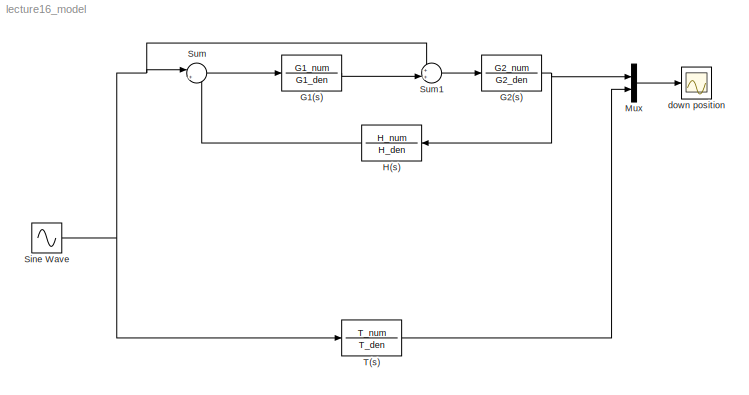
MODEL lecture16_model
KIND model
BLOCK [TransferFcn] G1(s)
  Denominator = G1_den
  Numerator = G1_num
  SID = 1
BLOCK [TransferFcn] G2(s)
  Denominator = G2_den
  Numerator = G2_num
  SID = 2
BLOCK [TransferFcn] H(s)
  Denominator = H_den
  Numerator = H_num
  SID = 3
BLOCK [Mux] Mux
  DisplayOption = bar
  Inputs = 2
  Ports = [2, 1]
  SID = 4
BLOCK [Sin] Sine Wave
  Ports = [0, 1]
  SID = 5
  SampleTime = 0
BLOCK [Sum] Sum
  IconShape = round
  InputSameDT = off
  Inputs = |+-
  OutDataTypeStr = Inherit: Inherit via internal rule
  Ports = [2, 1]
  SID = 6
  SaturateOnIntegerOverflow = off
BLOCK [Sum] Sum1
  IconShape = round
  InputSameDT = off
  Inputs = ++|
  OutDataTypeStr = Inherit: Inherit via internal rule
  Ports = [2, 1]
  SID = 7
  SaturateOnIntegerOverflow = off
BLOCK [TransferFcn] T(s)
  Denominator = T_den
  Numerator = T_num
  SID = 8
BLOCK [Scope] down position
  DataFormat = StructureWithTime
  Floating = off
  NumInputPorts = 1
  Ports = [1]
  SID = 9
  SampleTime = 0
  ZoomMode = xonly
LINE G1(s):1 -> Sum1:2
NET G2(s):1 -> H(s):1, Mux:1
LINE H(s):1 -> Sum:2
LINE Mux:1 -> down position:1
NET Sine Wave:1 -> Sum1:1, Sum:1, T(s):1
LINE Sum1:1 -> G2(s):1
LINE Sum:1 -> G1(s):1
LINE T(s):1 -> Mux:2
note: NET lines group one-source signal fan-out (src -> all destinations, sorted); 1:1 wires keep LINE
